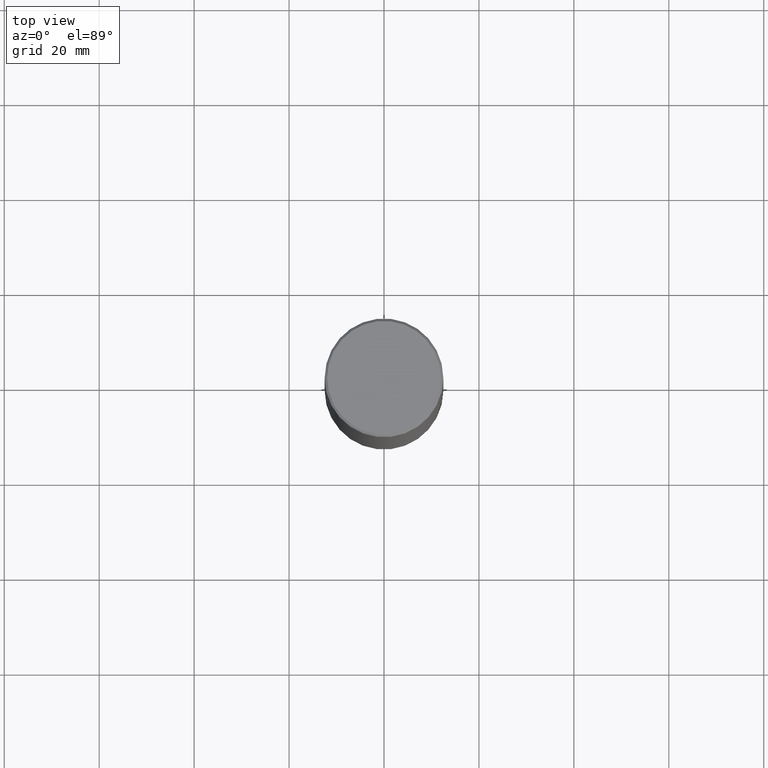
[diagram: clean part render]
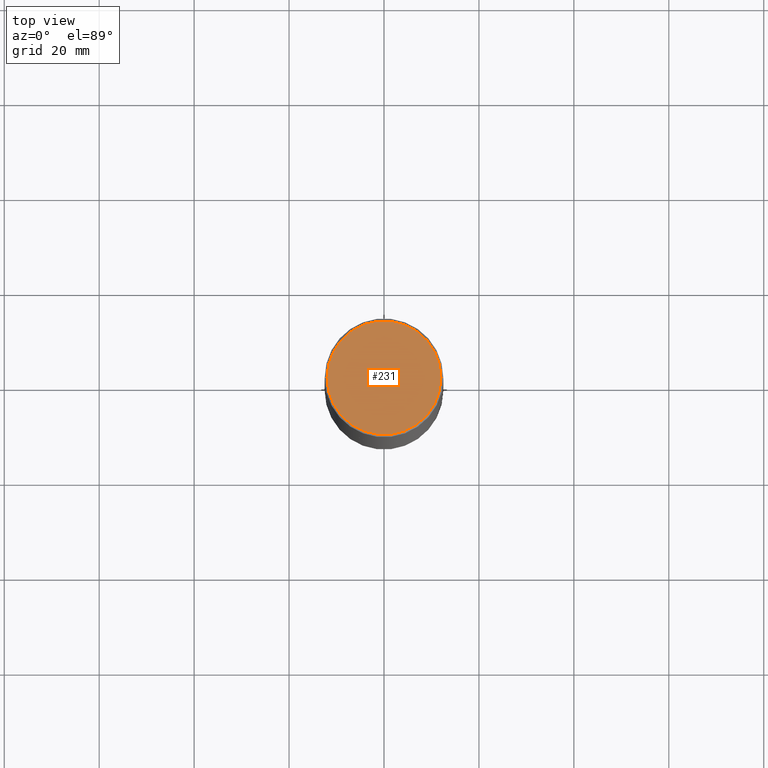
[diagram: same view with one face highlighted and labeled with its STEP entity id]
A machine part, top view. The second image highlights one B-rep face of the part: STEP entity #231.
In plain terms, the highlighted planar face has unit normal (0, -0, -1).
Its self-contained STEP definition (entity closure, byte-faithful):
#4 = DIRECTION ( 'NONE',  ( -1.000000000000000000, 6.982962677686265922E-15, -4.876176775795935793E-29 ) ) ;
#25 = DIRECTION ( 'NONE',  ( -2.445468806185136597E-29, 3.491481338843145583E-15, 1.000000000000000000 ) ) ;
#44 = EDGE_CURVE ( 'NONE', #71, #265, #170, .T. ) ;
#71 = VERTEX_POINT ( 'NONE', #242 ) ;
#82 = DIRECTION ( 'NONE',  ( 1.000000000000000000, -6.982962677686265922E-15, 4.876006802227162976E-29 ) ) ;
#84 = AXIS2_PLACEMENT_3D ( 'NONE', #297, #333, #82 ) ;
#89 = DIRECTION ( 'NONE',  ( 2.438088387897960049E-29, -3.491481338843145188E-15, -1.000000000000000000 ) ) ;
#107 = DIRECTION ( 'NONE',  ( 1.000000000000000000, -6.982962677686265922E-15, 4.876006802227162976E-29 ) ) ;
#129 = EDGE_CURVE ( 'NONE', #265, #71, #223, .T. ) ;
#136 = CARTESIAN_POINT ( 'NONE',  ( 3.297005828269567997E-15, 0.4721499999999996255, -1.644234401644689488E-15 ) ) ;
#144 = EDGE_LOOP ( 'NONE', ( #280, #172 ) ) ;
#170 = CIRCLE ( 'NONE', #351, 0.4721499999999996255 ) ;
#172 = ORIENTED_EDGE ( 'NONE', *, *, #44, .T. ) ;
#177 = AXIS2_PLACEMENT_3D ( 'NONE', #136, #89, #4 ) ;
#200 = CARTESIAN_POINT ( 'NONE',  ( -0.4721499999999996255, 3.331920641657999252E-15, 8.537024980177643606E-18 ) ) ;
#223 = CIRCLE ( 'NONE', #84, 0.4721499999999996255 ) ;
#231 = ADVANCED_FACE ( 'NONE', ( #248 ), #341, .F. ) ;
#242 = CARTESIAN_POINT ( 'NONE',  ( 0.4721499999999996255, -3.342703923013973396E-15, 8.537024980224040028E-18 ) ) ;
#248 = FACE_OUTER_BOUND ( 'NONE', #144, .T. ) ;
#265 = VERTEX_POINT ( 'NONE', #200 ) ;
#280 = ORIENTED_EDGE ( 'NONE', *, *, #129, .T. ) ;
#297 = CARTESIAN_POINT ( 'NONE',  ( -2.087702828670439639E-46, 2.980686340760894400E-32, 8.537024980200822558E-18 ) ) ;
#333 = DIRECTION ( 'NONE',  ( -2.445468806185136597E-29, 3.491481338843145583E-15, 1.000000000000000000 ) ) ;
#341 = PLANE ( 'NONE',  #177 ) ;
#351 = AXIS2_PLACEMENT_3D ( 'NONE', #362, #25, #107 ) ;
#362 = CARTESIAN_POINT ( 'NONE',  ( -2.087702828670439639E-46, 2.980686340760894400E-32, 8.537024980200822558E-18 ) ) ;